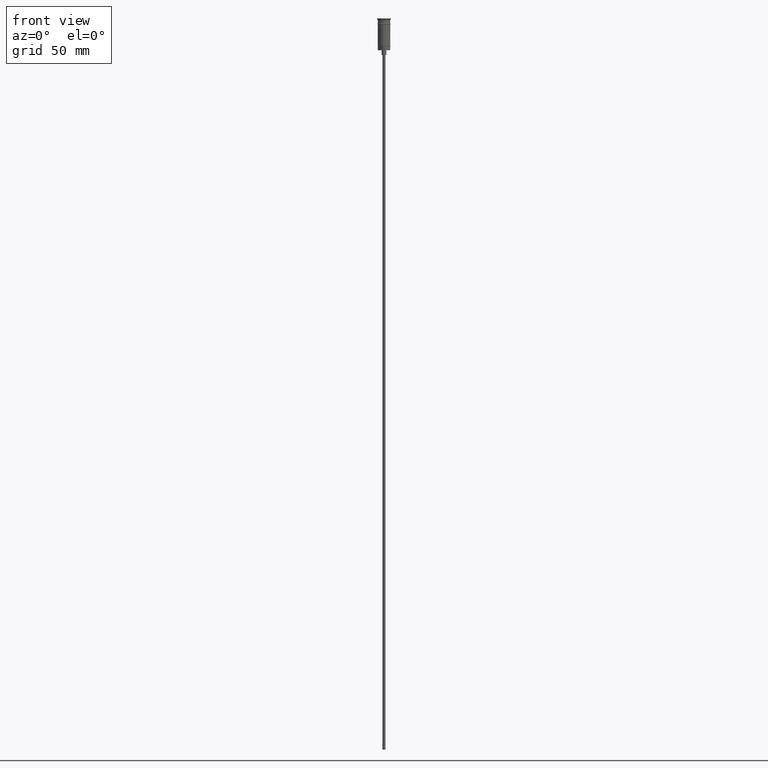
[diagram: clean part render]
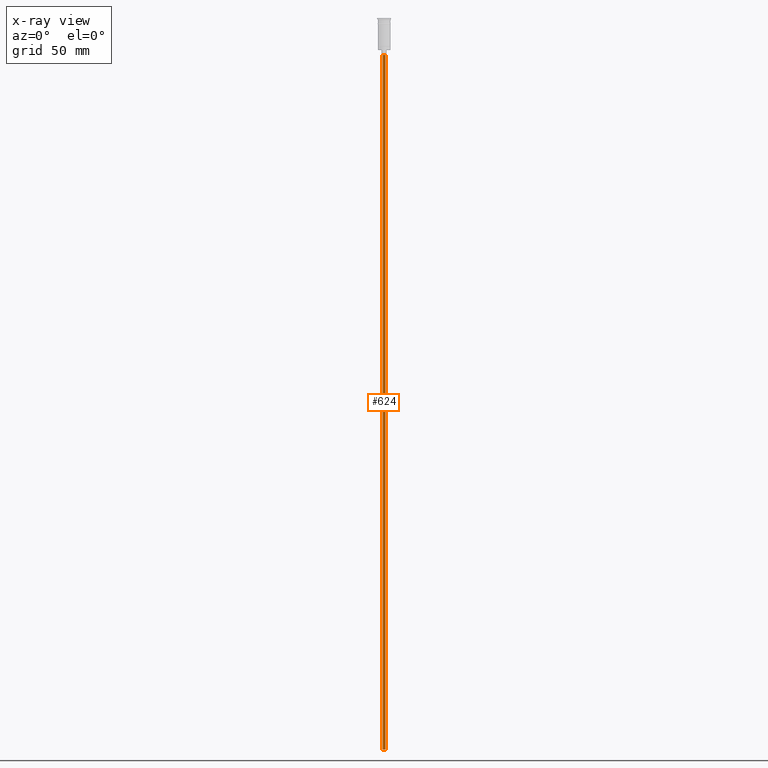
[diagram: x-ray — body ghosted, one internal face saturated and labeled with its STEP entity id]
A machine part, front view, then the same camera in x-ray: the body is ghosted and one INTERNAL B-rep face — a face not visible from any outside direction — is saturated and labeled: STEP entity #624.
In plain terms, the highlighted cylindrical surface (edge-blend (fillet) strip) has radius 1 mm, axis along (-0, -0, 1).
Its self-contained STEP definition (entity closure, byte-faithful):
#31 = CARTESIAN_POINT ( 'NONE',  ( 0.9999999999999997780, 0.000000000000000000, -470.5000000000000568 ) ) ;
#53 = CIRCLE ( 'NONE', #370, 0.9999999999999997780 ) ;
#66 = EDGE_LOOP ( 'NONE', ( #466, #1194, #1582, #382 ) ) ;
#204 = DIRECTION ( 'NONE',  ( -0.000000000000000000, -0.000000000000000000, 1.000000000000000000 ) ) ;
#312 = EDGE_CURVE ( 'NONE', #1446, #519, #884, .T. ) ;
#319 = CYLINDRICAL_SURFACE ( 'NONE', #1333, 0.9999999999999997780 ) ;
#324 = EDGE_CURVE ( 'NONE', #1446, #874, #747, .T. ) ;
#370 = AXIS2_PLACEMENT_3D ( 'NONE', #1238, #733, #402 ) ;
#381 = CARTESIAN_POINT ( 'NONE',  ( 0.000000000000000000, 0.000000000000000000, -470.5000000000000568 ) ) ;
#382 = ORIENTED_EDGE ( 'NONE', *, *, #1067, .F. ) ;
#402 = DIRECTION ( 'NONE',  ( -1.000000000000000000, 0.000000000000000000, 0.000000000000000000 ) ) ;
#418 = VECTOR ( 'NONE', #1200, 1000.000000000000000 ) ;
#466 = ORIENTED_EDGE ( 'NONE', *, *, #312, .F. ) ;
#519 = VERTEX_POINT ( 'NONE', #1262 ) ;
#533 = DIRECTION ( 'NONE',  ( -0.000000000000000000, -0.000000000000000000, 1.000000000000000000 ) ) ;
#557 = CARTESIAN_POINT ( 'NONE',  ( -0.9999999999999997780, 1.224646799147352961E-16, -470.5000000000000568 ) ) ;
#624 = ADVANCED_FACE ( 'NONE', ( #1574 ), #319, .T. ) ;
#678 = EDGE_CURVE ( 'NONE', #874, #822, #53, .T. ) ;
#733 = DIRECTION ( 'NONE',  ( 0.000000000000000000, 0.000000000000000000, -1.000000000000000000 ) ) ;
#747 = LINE ( 'NONE', #557, #418 ) ;
#777 = AXIS2_PLACEMENT_3D ( 'NONE', #381, #871, #1374 ) ;
#822 = VERTEX_POINT ( 'NONE', #1221 ) ;
#824 = DIRECTION ( 'NONE',  ( 1.000000000000000000, 0.000000000000000000, 0.000000000000000000 ) ) ;
#871 = DIRECTION ( 'NONE',  ( 0.000000000000000000, 0.000000000000000000, -1.000000000000000000 ) ) ;
#874 = VERTEX_POINT ( 'NONE', #1007 ) ;
#884 = CIRCLE ( 'NONE', #777, 0.9999999999999997780 ) ;
#1007 = CARTESIAN_POINT ( 'NONE',  ( -0.9999999999999997780, 1.224646799147352961E-16, -23.49999999999999645 ) ) ;
#1067 = EDGE_CURVE ( 'NONE', #519, #822, #1511, .T. ) ;
#1175 = CARTESIAN_POINT ( 'NONE',  ( -0.9999999999999997780, 1.224646799147352961E-16, -470.5000000000000568 ) ) ;
#1194 = ORIENTED_EDGE ( 'NONE', *, *, #324, .T. ) ;
#1200 = DIRECTION ( 'NONE',  ( -0.000000000000000000, -0.000000000000000000, 1.000000000000000000 ) ) ;
#1220 = CARTESIAN_POINT ( 'NONE',  ( 0.000000000000000000, 0.000000000000000000, -470.5000000000000568 ) ) ;
#1221 = CARTESIAN_POINT ( 'NONE',  ( 0.9999999999999997780, 0.000000000000000000, -23.49999999999999645 ) ) ;
#1238 = CARTESIAN_POINT ( 'NONE',  ( 0.000000000000000000, 0.000000000000000000, -23.49999999999999645 ) ) ;
#1262 = CARTESIAN_POINT ( 'NONE',  ( 0.9999999999999997780, 0.000000000000000000, -470.5000000000000568 ) ) ;
#1311 = VECTOR ( 'NONE', #533, 1000.000000000000000 ) ;
#1333 = AXIS2_PLACEMENT_3D ( 'NONE', #1220, #204, #824 ) ;
#1374 = DIRECTION ( 'NONE',  ( -1.000000000000000000, 0.000000000000000000, 0.000000000000000000 ) ) ;
#1446 = VERTEX_POINT ( 'NONE', #1175 ) ;
#1511 = LINE ( 'NONE', #31, #1311 ) ;
#1574 = FACE_OUTER_BOUND ( 'NONE', #66, .T. ) ;
#1582 = ORIENTED_EDGE ( 'NONE', *, *, #678, .T. ) ;